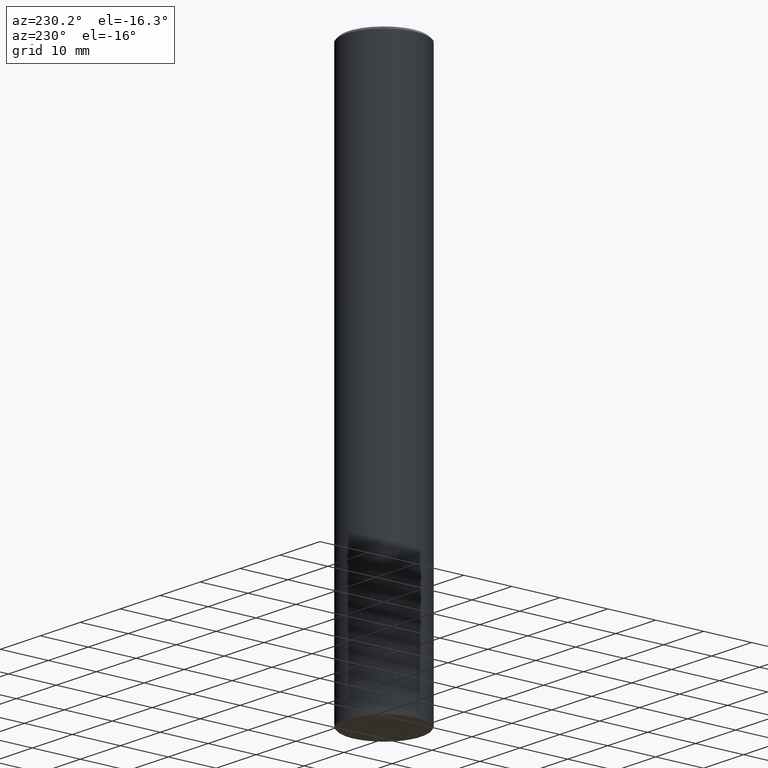
[diagram: clean part render]
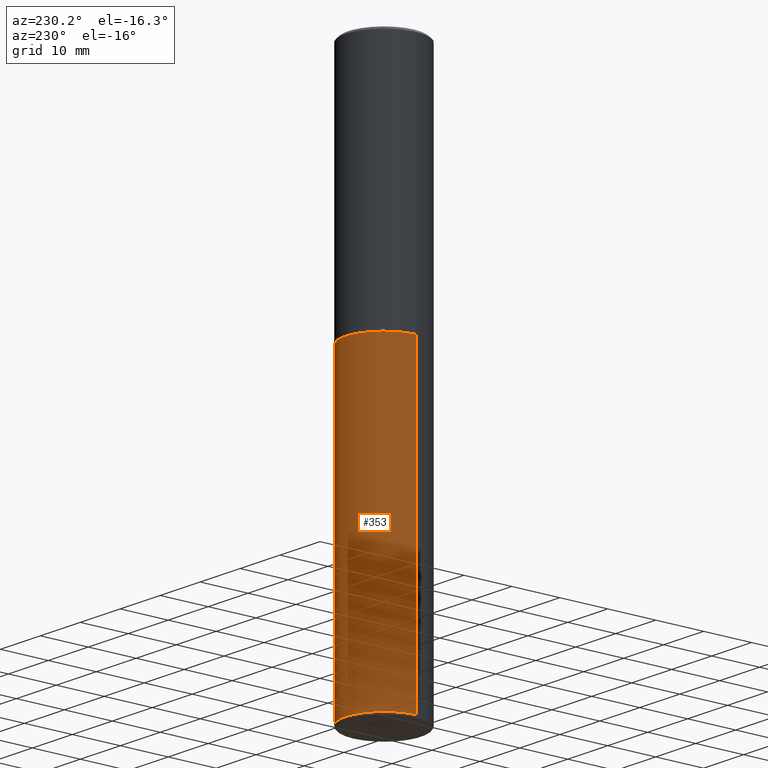
[diagram: same view with one face highlighted and labeled with its STEP entity id]
A machine part, auxiliary view. The second image highlights one B-rep face of the part: STEP entity #353.
In plain terms, the highlighted cylindrical surface (partial cylindrical patch) has radius 7.9997 mm, axis along (-0, 0, 1).
Its self-contained STEP definition (entity closure, byte-faithful):
#16 = DIRECTION ( 'NONE',  ( -2.445468806185136597E-29, 3.491481338843145583E-15, 1.000000000000000000 ) ) ;
#18 = FACE_OUTER_BOUND ( 'NONE', #133, .T. ) ;
#26 = DIRECTION ( 'NONE',  ( 1.000000000000000000, -6.982962677686268288E-15, 0.000000000000000000 ) ) ;
#31 = EDGE_CURVE ( 'NONE', #164, #228, #254, .T. ) ;
#33 = VERTEX_POINT ( 'NONE', #118 ) ;
#48 = CARTESIAN_POINT ( 'NONE',  ( 1.102392883140197736E-28, -1.573924872737101586E-14, -4.507900000000000240 ) ) ;
#59 = DIRECTION ( 'NONE',  ( -2.445468806185136877E-29, 3.491481338843145188E-15, 1.000000000000000000 ) ) ;
#65 = ORIENTED_EDGE ( 'NONE', *, *, #31, .T. ) ;
#75 = ORIENTED_EDGE ( 'NONE', *, *, #374, .F. ) ;
#88 = CARTESIAN_POINT ( 'NONE',  ( -0.3149500000000000077, 2.237854346276435590E-15, -1.549218606675782676E-29 ) ) ;
#106 = LINE ( 'NONE', #402, #154 ) ;
#107 = CARTESIAN_POINT ( 'NONE',  ( -0.3149500000000000077, -9.137042707540648986E-15, -2.007899999999999796 ) ) ;
#111 = EDGE_CURVE ( 'NONE', #325, #33, #106, .T. ) ;
#117 = CARTESIAN_POINT ( 'NONE',  ( -0.3149500000000000077, -1.350139438109458146E-14, -4.507900000000000240 ) ) ;
#118 = CARTESIAN_POINT ( 'NONE',  ( 0.3149500000000000077, -9.209829475600440793E-15, -2.007899999999999796 ) ) ;
#133 = EDGE_LOOP ( 'NONE', ( #231, #65, #75, #136 ) ) ;
#136 = ORIENTED_EDGE ( 'NONE', *, *, #111, .F. ) ;
#139 = CYLINDRICAL_SURFACE ( 'NONE', #146, 0.3149500000000000077 ) ;
#141 = DIRECTION ( 'NONE',  ( -2.445468806185136597E-29, 3.491481338843145583E-15, 1.000000000000000000 ) ) ;
#146 = AXIS2_PLACEMENT_3D ( 'NONE', #270, #141, #329 ) ;
#154 = VECTOR ( 'NONE', #339, 39.37007874015748143 ) ;
#164 = VERTEX_POINT ( 'NONE', #117 ) ;
#173 = CARTESIAN_POINT ( 'NONE',  ( 0.3149500000000000077, -1.793853282270830731E-14, -4.507900000000000240 ) ) ;
#215 = VECTOR ( 'NONE', #59, 39.37007874015748143 ) ;
#228 = VERTEX_POINT ( 'NONE', #107 ) ;
#231 = ORIENTED_EDGE ( 'NONE', *, *, #262, .T. ) ;
#240 = DIRECTION ( 'NONE',  ( -2.445468806185136597E-29, 3.491481338843145583E-15, 1.000000000000000000 ) ) ;
#251 = CIRCLE ( 'NONE', #373, 0.3149500000000000632 ) ;
#254 = LINE ( 'NONE', #88, #215 ) ;
#262 = EDGE_CURVE ( 'NONE', #325, #164, #251, .T. ) ;
#268 = DIRECTION ( 'NONE',  ( 1.000000000000000000, -6.982962677686263555E-15, 0.000000000000000000 ) ) ;
#270 = CARTESIAN_POINT ( 'NONE',  ( 0.000000000000000000, 0.000000000000000000, 0.000000000000000000 ) ) ;
#291 = CIRCLE ( 'NONE', #304, 0.3149500000000000077 ) ;
#304 = AXIS2_PLACEMENT_3D ( 'NONE', #364, #16, #268 ) ;
#325 = VERTEX_POINT ( 'NONE', #173 ) ;
#329 = DIRECTION ( 'NONE',  ( 1.000000000000000000, -6.982962677686266711E-15, 4.876176775795936353E-29 ) ) ;
#339 = DIRECTION ( 'NONE',  ( -2.445468806185136877E-29, 3.491481338843145188E-15, 1.000000000000000000 ) ) ;
#353 = ADVANCED_FACE ( 'NONE', ( #18 ), #139, .T. ) ;
#364 = CARTESIAN_POINT ( 'NONE',  ( 4.910256815939135870E-29, -7.010545380263151710E-15, -2.007899999999999796 ) ) ;
#373 = AXIS2_PLACEMENT_3D ( 'NONE', #48, #240, #26 ) ;
#374 = EDGE_CURVE ( 'NONE', #33, #228, #291, .T. ) ;
#402 = CARTESIAN_POINT ( 'NONE',  ( 0.3149500000000000077, -2.199284095337289871E-15, 1.535751875536930130E-29 ) ) ;